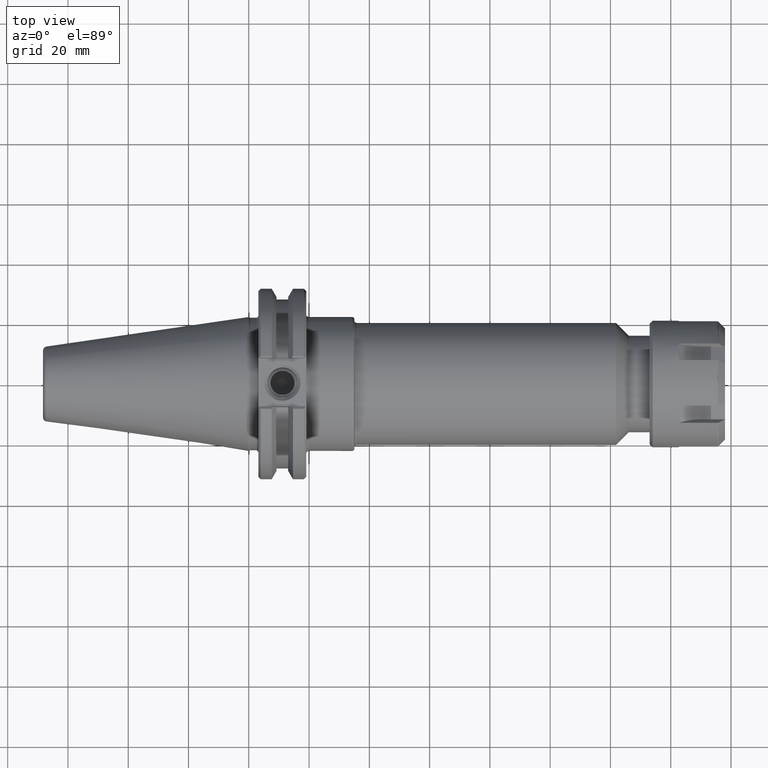
[diagram: clean part render]
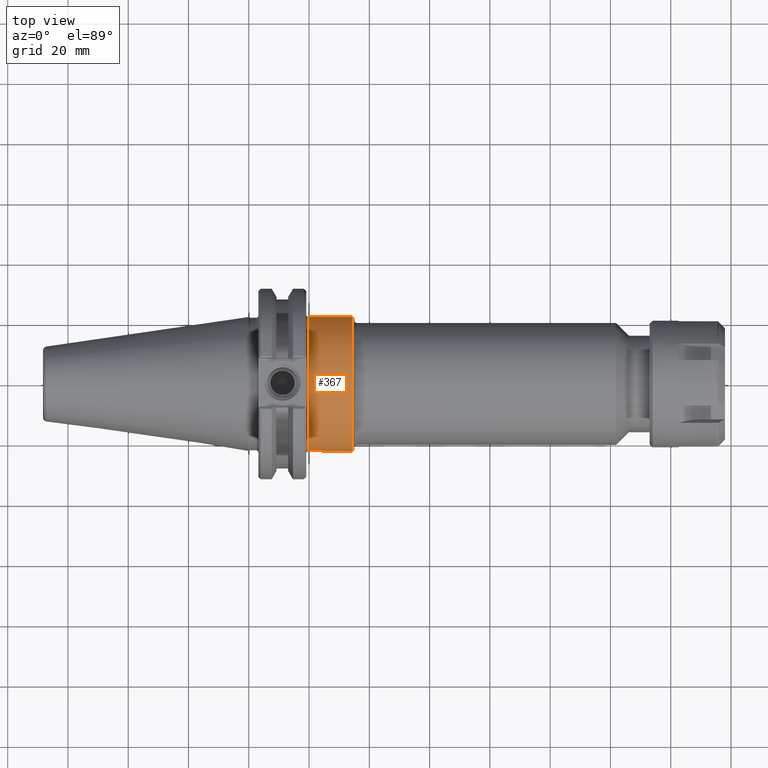
[diagram: same view with one face highlighted and labeled with its STEP entity id]
A machine part, top view. The second image highlights one B-rep face of the part: STEP entity #367.
In plain terms, the highlighted cylindrical surface (bore or boss wall) has radius 22.225 mm, axis along (1, 0, 0).
Its self-contained STEP definition (entity closure, byte-faithful):
#219=CARTESIAN_POINT('',(0.78,0.875,-2.143132E-016));
#220=VERTEX_POINT('',#219);
#221=CARTESIAN_POINT('',(0.78,0.0,0.0));
#222=DIRECTION('',(-1.0,0.0,0.0));
#223=DIRECTION('',(0.0,-1.0,0.0));
#224=AXIS2_PLACEMENT_3D('',#221,#222,#223);
#225=CIRCLE('',#224,0.875);
#226=EDGE_CURVE('',#220,#220,#225,.T.);
#348=CARTESIAN_POINT('',(1.065,0.0,0.0));
#349=DIRECTION('',(1.0,0.0,0.0));
#350=DIRECTION('',(-1.624514E-013,1.0,0.0));
#351=AXIS2_PLACEMENT_3D('',#348,#349,#350);
#352=CYLINDRICAL_SURFACE('',#351,0.875);
#353=CARTESIAN_POINT('',(1.35,0.875,0.0));
#354=VERTEX_POINT('',#353);
#355=CARTESIAN_POINT('',(1.35,0.0,0.0));
#356=DIRECTION('',(1.0,0.0,0.0));
#357=DIRECTION('',(0.0,-1.0,0.0));
#358=AXIS2_PLACEMENT_3D('',#355,#356,#357);
#359=CIRCLE('',#358,0.875);
#360=EDGE_CURVE('',#354,#354,#359,.T.);
#361=ORIENTED_EDGE('',*,*,#360,.F.);
#362=EDGE_LOOP('',(#361));
#363=FACE_OUTER_BOUND('',#362,.T.);
#364=ORIENTED_EDGE('',*,*,#226,.F.);
#365=EDGE_LOOP('',(#364));
#366=FACE_BOUND('',#365,.T.);
#367=ADVANCED_FACE('',(#363,#366),#352,.T.);